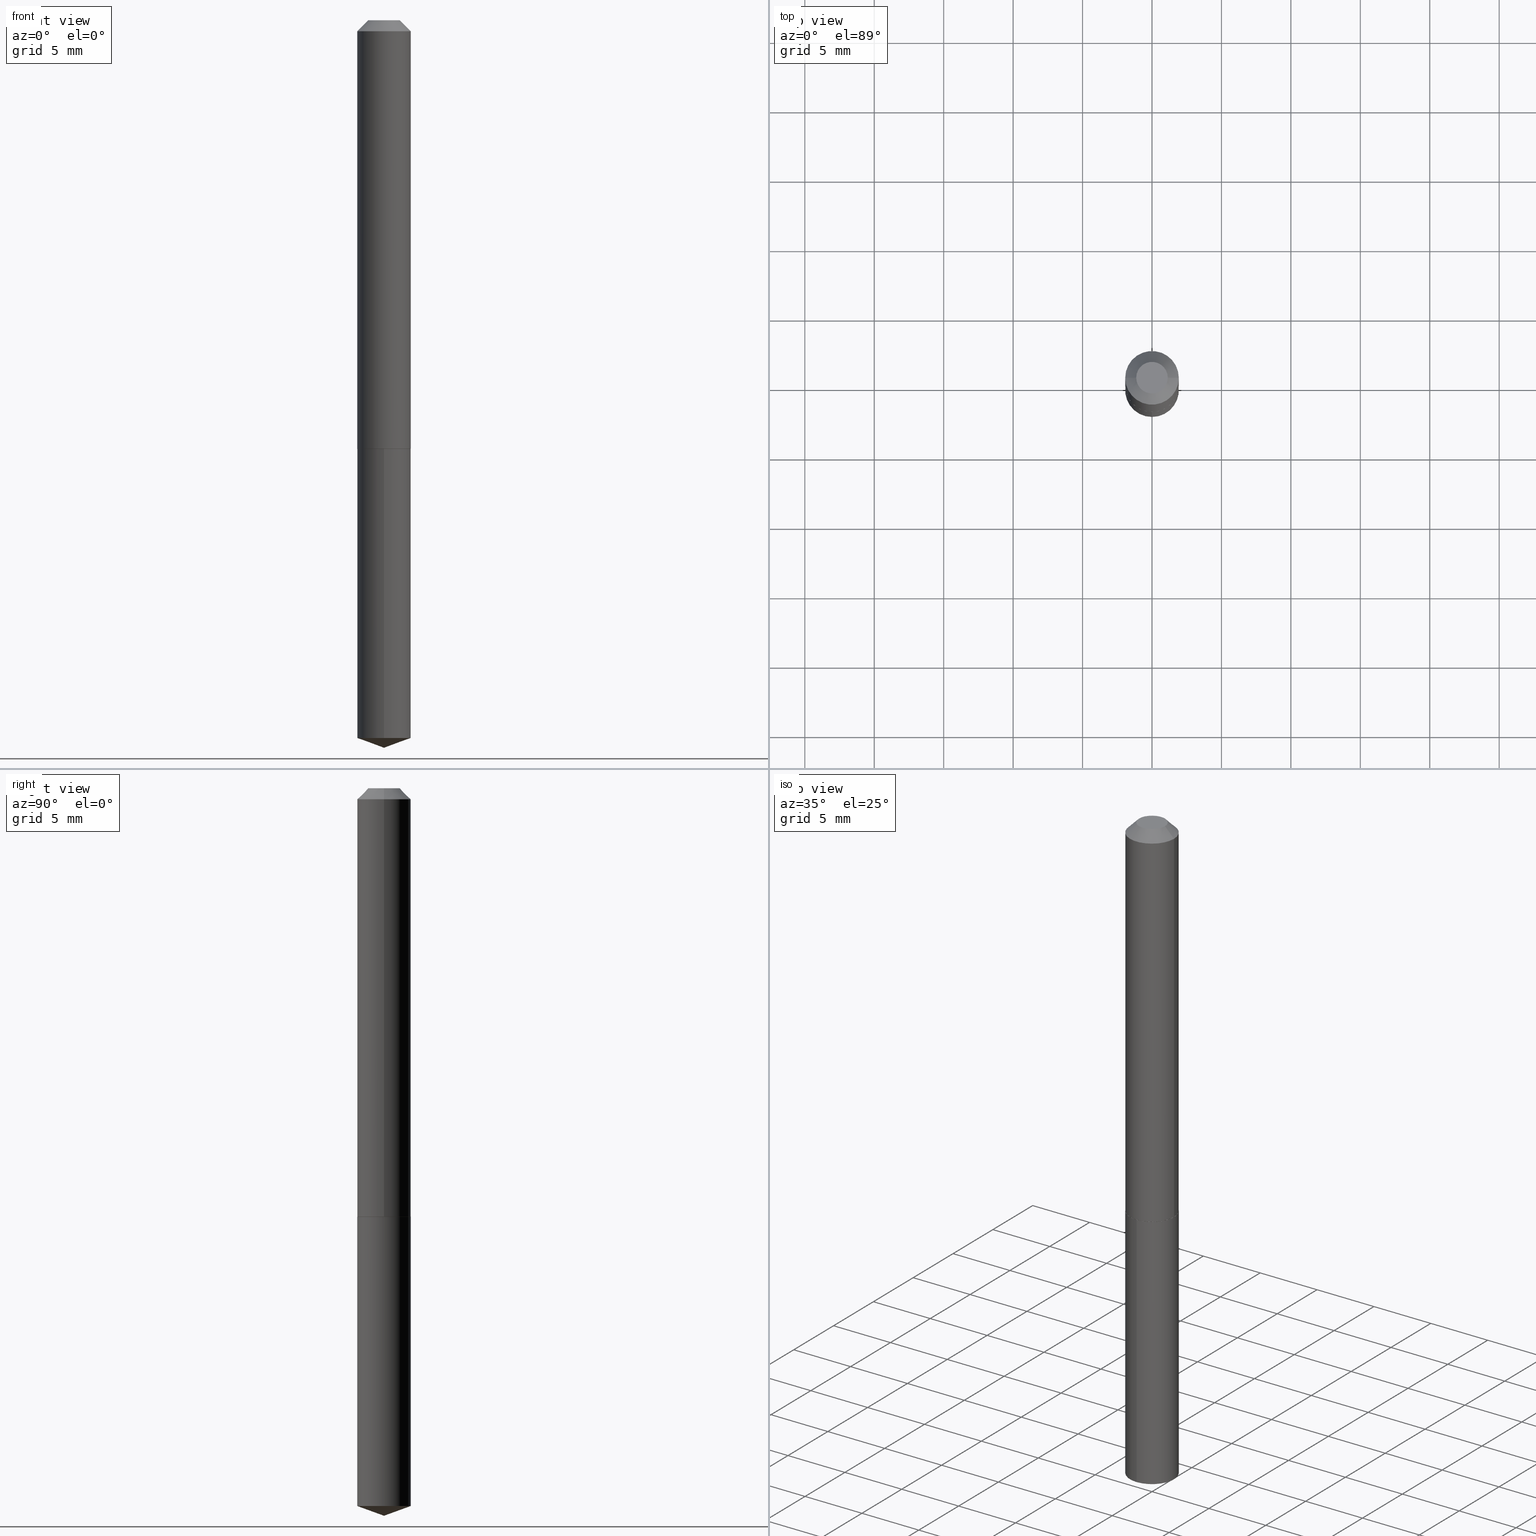
[diagram: canonical four-view strip — front | top / right | iso, engineering-drawing reading convention]
A machine part, canonical four-view strip (front | top / right | iso — engineering-drawing reading convention). The complete STEP part file that produces these views, byte-faithful:
ISO-10303-21;
HEADER;
FILE_DESCRIPTION (( 'STEP AP203' ),
    '1' );
FILE_NAME ('56233.STEP',
    '2024-04-22T21:14:13',
    ( '' ),
    ( '' ),
    'SwSTEP 2.0',
    'SolidWorks 2023',
    '' );
FILE_SCHEMA (( 'CONFIG_CONTROL_DESIGN' ));
ENDSEC;

DATA;
#1 = ORIENTED_EDGE ( 'NONE', *, *, #373, .T. ) ;
#2 = FACE_OUTER_BOUND ( 'NONE', #35, .T. ) ;
#3 = AXIS2_PLACEMENT_3D ( 'NONE', #153, #265, #93 ) ;
#4 = CARTESIAN_POINT ( 'NONE',  ( 2.970021865111848657E-29, -4.240404086025000985E-15, -1.214500000000000135 ) ) ;
#5 = EDGE_LOOP ( 'NONE', ( #272, #96, #363 ) ) ;
#6 = DIRECTION ( 'NONE',  ( -6.982962677686265922E-15, -1.000000000000000000, 3.594536833768767206E-15 ) ) ;
#7 = CARTESIAN_POINT ( 'NONE',  ( 1.435698766471706349E-29, -6.437642091525159850E-15, -1.214500000000000135 ) ) ;
#8 = ADVANCED_FACE ( 'NONE', ( #48 ), #81, .T. ) ;
#9 = ORIENTED_EDGE ( 'NONE', *, *, #143, .T. ) ;
#10 = APPROVAL_DATE_TIME ( #274, #304 ) ;
#11 = DIRECTION ( 'NONE',  ( 2.445468806185136597E-29, -3.491481338843145583E-15, -1.000000000000000000 ) ) ;
#12 = LINE ( 'NONE', #130, #178 ) ;
#13 = ORIENTED_EDGE ( 'NONE', *, *, #263, .T. ) ;
#14 = DIRECTION ( 'NONE',  ( 0.7071067811865451302, -7.319954787623248157E-15, -0.7071067811865499042 ) ) ;
#15 = VECTOR ( 'NONE', #181, 39.37007874015748143 ) ;
#16 = DIRECTION ( 'NONE',  ( -2.445468806185136597E-29, 3.491481338843145583E-15, 1.000000000000000000 ) ) ;
#17 = ORIENTED_EDGE ( 'NONE', *, *, #240, .F. ) ;
#18 = ADVANCED_FACE ( 'NONE', ( #196 ), #170, .T. ) ;
#19 = DIRECTION ( 'NONE',  ( -2.445502478072881383E-29, 3.491433118783410278E-15, 1.000000000000000000 ) ) ;
#20 = FACE_OUTER_BOUND ( 'NONE', #235, .T. ) ;
#21 = PERSON_AND_ORGANIZATION ( #77, #58 ) ;
#22 = VECTOR ( 'NONE', #298, 39.37007874015748143 ) ;
#23 = CIRCLE ( 'NONE', #84, 0.07599999999999999811 ) ;
#24 = ORIENTED_EDGE ( 'NONE', *, *, #67, .F. ) ;
#25 = PERSON_AND_ORGANIZATION ( #77, #58 ) ;
#26 = ORIENTED_EDGE ( 'NONE', *, *, #263, .F. ) ;
#27 = ORIENTED_EDGE ( 'NONE', *, *, #209, .F. ) ;
#28 = ORIENTED_EDGE ( 'NONE', *, *, #324, .T. ) ;
#29 = CONICAL_SURFACE ( 'NONE', #269, 0.07599999999999999811, 0.7853981633974449483 ) ;
#30 = CC_DESIGN_SECURITY_CLASSIFICATION ( #108, ( #271 ) ) ;
#31 = EDGE_CURVE ( 'NONE', #60, #85, #351, .T. ) ;
#32 = DIRECTION ( 'NONE',  ( -2.445502478072881663E-29, 3.491433118783410278E-15, 1.000000000000000000 ) ) ;
#33 = DIRECTION ( 'NONE',  ( -2.445468806185136597E-29, 3.491481338843145583E-15, 1.000000000000000000 ) ) ;
#34 = AXIS2_PLACEMENT_3D ( 'NONE', #378, #169, #139 ) ;
#35 = EDGE_LOOP ( 'NONE', ( #17, #175, #110, #315 ) ) ;
#36 = FACE_OUTER_BOUND ( 'NONE', #257, .T. ) ;
#37 = CARTESIAN_POINT ( 'NONE',  ( 0.04474999999999999811, -4.687569625348806714E-16, -1.224646799120048031E-19 ) ) ;
#38 = PERSON_AND_ORGANIZATION ( #77, #58 ) ;
#39 = LINE ( 'NONE', #146, #15 ) ;
#40 = CARTESIAN_POINT ( 'NONE',  ( 4.976161118169602399E-29, -7.104560263260536037E-15, -2.034838262195768799 ) ) ;
#41 = CARTESIAN_POINT ( 'NONE',  ( 2.994835545909338206E-48, -4.275831445896990567E-34, -1.224646799147357958E-19 ) ) ;
#42 = ADVANCED_FACE ( 'NONE', ( #2 ), #325, .T. ) ;
#43 = CARTESIAN_POINT ( 'NONE',  ( 5.043767072009985214E-29, -7.201197934015881746E-15, -2.062500000000000000 ) ) ;
#44 = CALENDAR_DATE ( 2024, 22, 4 ) ;
#45 = DIRECTION ( 'NONE',  ( -2.445468806185136877E-29, 3.491481338843145188E-15, 1.000000000000000000 ) ) ;
#46 = ORIENTED_EDGE ( 'NONE', *, *, #289, .F. ) ;
#47 = MANIFOLD_SOLID_BREP ( 'Body-Move/Copy2[2]', #64 ) ;
#48 = FACE_OUTER_BOUND ( 'NONE', #278, .T. ) ;
#49 = CARTESIAN_POINT ( 'NONE',  ( -0.07600000000000006750, 5.400124791776766209E-16, -3.738390668593732200E-30 ) ) ;
#50 = CC_DESIGN_DATE_AND_TIME_ASSIGNMENT ( #102, #223, ( #198 ) ) ;
#51 = AXIS2_PLACEMENT_3D ( 'NONE', #344, #308, #375 ) ;
#52 = CARTESIAN_POINT ( 'NONE',  ( 0.000000000000000000, 0.000000000000000000, 0.000000000000000000 ) ) ;
#53 = COORDINATED_UNIVERSAL_TIME_OFFSET ( 5, 0, .BEHIND. ) ;
#54 = DIRECTION ( 'NONE',  ( 1.000000000000000000, -6.982962677686265922E-15, 0.000000000000000000 ) ) ;
#55 = CALENDAR_DATE ( 2024, 22, 4 ) ;
#56 = DIRECTION ( 'NONE',  ( -2.445502478072881383E-29, 3.491433118783410278E-15, 1.000000000000000000 ) ) ;
#57 = CIRCLE ( 'NONE', #69, 0.07550000000000026135 ) ;
#58 = ORGANIZATION ( 'UNSPECIFIED', 'UNSPECIFIED', '' ) ;
#59 = VERTEX_POINT ( 'NONE', #37 ) ;
#60 = VERTEX_POINT ( 'NONE', #157 ) ;
#61 = PLANE ( 'NONE',  #342 ) ;
#62 = EDGE_CURVE ( 'NONE', #382, #220, #268, .T. ) ;
#63 = DIRECTION ( 'NONE',  ( 0.000000000000000000, 0.000000000000000000, 1.000000000000000000 ) ) ;
#64 = CLOSED_SHELL ( 'NONE', ( #18, #168, #100, #330, #368, #234, #186, #314 ) ) ;
#65 = VECTOR ( 'NONE', #14, 39.37007874015748143 ) ;
#66 = UNCERTAINTY_MEASURE_WITH_UNIT (LENGTH_MEASURE( 1.000000000000000082E-05 ), #89, 'distance_accuracy_value', 'NONE');
#67 = EDGE_CURVE ( 'NONE', #382, #134, #311, .T. ) ;
#68 = CARTESIAN_POINT ( 'NONE',  ( 5.043848861025317432E-29, -7.201080807490783057E-15, -2.062500000000000000 ) ) ;
#69 = AXIS2_PLACEMENT_3D ( 'NONE', #4, #95, #275 ) ;
#70 = AXIS2_PLACEMENT_3D ( 'NONE', #180, #291, #362 ) ;
#71 = DIRECTION ( 'NONE',  ( 1.000000000000000000, -6.982962677686266711E-15, 4.876173742049987610E-29 ) ) ;
#72 = ORIENTED_EDGE ( 'NONE', *, *, #149, .T. ) ;
#73 = ORIENTED_EDGE ( 'NONE', *, *, #316, .F. ) ;
#74 = EDGE_CURVE ( 'NONE', #326, #60, #183, .T. ) ;
#75 = DIRECTION ( 'NONE',  ( -2.445502478072881663E-29, 3.491433118783410278E-15, 1.000000000000000000 ) ) ;
#76 = PERSON_AND_ORGANIZATION ( #77, #58 ) ;
#77 = PERSON ( 'UNSPECIFIED', 'UNSPECIFIED', 'UNSPECIFIED', ('UNSPECIFIED'), ('UNSPECIFIED'), ('UNSPECIFIED') ) ;
#78 = APPROVAL_STATUS ( 'not_yet_approved' ) ;
#79 = DIRECTION ( 'NONE',  ( 1.000000000000000000, -6.982962677686269077E-15, 0.000000000000000000 ) ) ;
#80 = CARTESIAN_POINT ( 'NONE',  ( 7.642090019328602662E-31, -1.091087918388490267E-16, -0.03125000000000020817 ) ) ;
#81 = CYLINDRICAL_SURFACE ( 'NONE', #285, 0.07599999999999999811 ) ;
#82 = DIRECTION ( 'NONE',  ( -2.445468806185136597E-29, 3.491481338843145583E-15, 1.000000000000000000 ) ) ;
#83 = EDGE_CURVE ( 'NONE', #200, #326, #150, .T. ) ;
#84 = AXIS2_PLACEMENT_3D ( 'NONE', #172, #384, #352 ) ;
#85 = VERTEX_POINT ( 'NONE', #125 ) ;
#86 = DIRECTION ( 'NONE',  ( 1.000000000000000000, 0.000000000000000000, 0.000000000000000000 ) ) ;
#87 = DIRECTION ( 'NONE',  ( -0.7071067811863422925, 7.493145998869612631E-15, 0.7071067811867527420 ) ) ;
#88 = DIRECTION ( 'NONE',  ( 1.000000000000000000, -6.982962677686265922E-15, 4.876176775795935793E-29 ) ) ;
#89 =( CONVERSION_BASED_UNIT ( 'INCH', #260 ) LENGTH_UNIT ( ) NAMED_UNIT ( #174 ) );
#90 = APPROVAL_PERSON_ORGANIZATION ( #313, #360, #195 ) ;
#91 = DIRECTION ( 'NONE',  ( 1.000000000000000000, -6.982962677686269077E-15, 0.000000000000000000 ) ) ;
#92 = APPROVAL_PERSON_ORGANIZATION ( #138, #304, #140 ) ;
#93 = DIRECTION ( 'NONE',  ( 1.000000000000000000, -6.982962677686269077E-15, 0.000000000000000000 ) ) ;
#94 = ORIENTED_EDGE ( 'NONE', *, *, #295, .T. ) ;
#95 = DIRECTION ( 'NONE',  ( -2.445468806185136597E-29, 3.491481338843145583E-15, 1.000000000000000000 ) ) ;
#96 = ORIENTED_EDGE ( 'NONE', *, *, #214, .T. ) ;
#97 = EDGE_LOOP ( 'NONE', ( #173, #288, #267, #338 ) ) ;
#98 = CIRCLE ( 'NONE', #334, 0.07600000000000013689 ) ;
#99 = CC_DESIGN_APPROVAL ( #116, ( #198 ) ) ;
#100 = ADVANCED_FACE ( 'NONE', ( #225 ), #321, .T. ) ;
#101 = LINE ( 'NONE', #300, #383 ) ;
#102 = DATE_AND_TIME ( #151, #148 ) ;
#103 = CARTESIAN_POINT ( 'NONE',  ( 0.000000000000000000, 0.000000000000000000, 0.000000000000000000 ) ) ;
#104 = CARTESIAN_POINT ( 'NONE',  ( 0.07599999999999999811, -6.398139553430053154E-16, -0.03125000000000020817 ) ) ;
#105 = COORDINATED_UNIVERSAL_TIME_OFFSET ( 5, 0, .BEHIND. ) ;
#106 = LINE ( 'NONE', #49, #299 ) ;
#107 = APPROVAL_DATE_TIME ( #135, #360 ) ;
#108 = SECURITY_CLASSIFICATION ( '', '', #163 ) ;
#109 = APPROVAL_DATE_TIME ( #160, #116 ) ;
#110 = ORIENTED_EDGE ( 'NONE', *, *, #74, .T. ) ;
#111 = APPLICATION_PROTOCOL_DEFINITION ( 'international standard', 'config_control_design', 1994, #251 ) ;
#112 = EDGE_CURVE ( 'NONE', #232, #220, #98, .T. ) ;
#113 = ORIENTED_EDGE ( 'NONE', *, *, #324, .F. ) ;
#114 = DIRECTION ( 'NONE',  ( 1.000000000000000000, -6.982962677686269866E-15, 0.000000000000000000 ) ) ;
#115 = DIRECTION ( 'NONE',  ( -1.000000000000000000, 6.982962677686265922E-15, 0.000000000000000000 ) ) ;
#116 = APPROVAL ( #155, 'UNSPECIFIED' ) ;
#117 = APPLICATION_PROTOCOL_DEFINITION ( 'international standard', 'config_control_design', 1994, #233 ) ;
#118 = DIRECTION ( 'NONE',  ( 2.438088387897960049E-29, -3.491481338843145188E-15, -1.000000000000000000 ) ) ;
#119 = CLOSED_SHELL ( 'NONE', ( #8, #270, #182, #42, #350 ) ) ;
#120 = CARTESIAN_POINT ( 'NONE',  ( -0.07600000000000013689, -3.698645866177901283E-15, -1.213999999999999968 ) ) ;
#121 = AXIS2_PLACEMENT_3D ( 'NONE', #323, #187, #390 ) ;
#122 = AXIS2_PLACEMENT_3D ( 'NONE', #7, #188, #88 ) ;
#123 = ORIENTED_EDGE ( 'NONE', *, *, #83, .T. ) ;
#124 = ORIENTED_EDGE ( 'NONE', *, *, #128, .F. ) ;
#125 = CARTESIAN_POINT ( 'NONE',  ( 5.400124791777260233E-16, 0.07599999999999575151, -1.214500000000000357 ) ) ;
#126 = ORIENTED_EDGE ( 'NONE', *, *, #289, .T. ) ;
#127 = CARTESIAN_POINT ( 'NONE',  ( 5.043849578218437891E-29, -7.201080807490783057E-15, -2.062500000000000000 ) ) ;
#128 = EDGE_CURVE ( 'NONE', #134, #382, #57, .T. ) ;
#129 = DIRECTION ( 'NONE',  ( -1.000000000000000000, 6.982962677686265922E-15, 0.000000000000000000 ) ) ;
#130 = CARTESIAN_POINT ( 'NONE',  ( -0.07599999999999999811, 4.215963716653072620E-16, -0.03125000000000020817 ) ) ;
#131 = ORIENTED_EDGE ( 'NONE', *, *, #345, .F. ) ;
#132 = FACE_OUTER_BOUND ( 'NONE', #5, .T. ) ;
#133 = CARTESIAN_POINT ( 'NONE',  ( 7.642090019328602662E-31, -1.091087918388490267E-16, -0.03125000000000020817 ) ) ;
#134 = VERTEX_POINT ( 'NONE', #217 ) ;
#135 = DATE_AND_TIME ( #55, #142 ) ;
#136 = CARTESIAN_POINT ( 'NONE',  ( 7.642090019328602662E-31, -1.091087918388490267E-16, -0.03125000000000020817 ) ) ;
#137 = LINE ( 'NONE', #367, #65 ) ;
#138 = PERSON_AND_ORGANIZATION ( #77, #58 ) ;
#139 = DIRECTION ( 'NONE',  ( -6.982962677686268288E-15, -1.000000000000000000, 3.475157955500691026E-15 ) ) ;
#140 = APPROVAL_ROLE ( '' ) ;
#141 = AXIS2_PLACEMENT_3D ( 'NONE', #253, #224, #340 ) ;
#142 = LOCAL_TIME ( 17, 14, 13.00000000000000000, #53 ) ;
#143 = EDGE_CURVE ( 'NONE', #247, #210, #158, .T. ) ;
#144 = VERTEX_POINT ( 'NONE', #162 ) ;
#145 = PRODUCT_RELATED_PRODUCT_CATEGORY ( 'detail', '', ( #332 ) ) ;
#146 = CARTESIAN_POINT ( 'NONE',  ( 0.07600000000000013689, -4.769363508859736288E-15, -1.213999999999999968 ) ) ;
#147 = CIRCLE ( 'NONE', #361, 0.07600000000000013689 ) ;
#148 = LOCAL_TIME ( 17, 14, 13.00000000000000000, #353 ) ;
#149 = EDGE_CURVE ( 'NONE', #232, #247, #101, .T. ) ;
#150 = LINE ( 'NONE', #43, #357 ) ;
#151 = CALENDAR_DATE ( 2024, 22, 4 ) ;
#152 = AXIS2_PLACEMENT_3D ( 'NONE', #136, #11, #129 ) ;
#153 = CARTESIAN_POINT ( 'NONE',  ( 2.968799130708755855E-29, -4.238658345355578692E-15, -1.213999999999999968 ) ) ;
#154 = CARTESIAN_POINT ( 'NONE',  ( -0.07599999999999999811, -1.633871089419536487E-15, -0.03125000000000020817 ) ) ;
#155 = APPROVAL_STATUS ( 'not_yet_approved' ) ;
#156 = EDGE_LOOP ( 'NONE', ( #176, #28 ) ) ;
#157 = CARTESIAN_POINT ( 'NONE',  ( -5.307051635041264353E-16, -0.07600000000000424472, -1.214499999999999691 ) ) ;
#158 = CIRCLE ( 'NONE', #341, 0.07599999999999999811 ) ;
#159 = CC_DESIGN_APPROVAL ( #360, ( #271 ) ) ;
#160 = DATE_AND_TIME ( #191, #167 ) ;
#161 = ORIENTED_EDGE ( 'NONE', *, *, #240, .T. ) ;
#162 = CARTESIAN_POINT ( 'NONE',  ( -0.04474999999999999811, 3.670419757458837964E-16, -1.224646799171116471E-19 ) ) ;
#163 = SECURITY_CLASSIFICATION_LEVEL ( 'unclassified' ) ;
#164 = CC_DESIGN_PERSON_AND_ORGANIZATION_ASSIGNMENT ( #21, #371, ( #108 ) ) ;
#165 = DIRECTION ( 'NONE',  ( -6.982962677686265922E-15, -1.000000000000000000, 3.594536833768767206E-15 ) ) ;
#166 = AXIS2_PLACEMENT_3D ( 'NONE', #199, #16, #310 ) ;
#167 = LOCAL_TIME ( 17, 14, 13.00000000000000000, #239 ) ;
#168 = ADVANCED_FACE ( 'NONE', ( #250 ), #221, .T. ) ;
#169 = DIRECTION ( 'NONE',  ( -2.445502478072881383E-29, 3.491433118783410278E-15, 1.000000000000000000 ) ) ;
#170 = CONICAL_SURFACE ( 'NONE', #152, 0.07599999999999999811, 0.7853981633974449483 ) ;
#171 = AXIS2_PLACEMENT_3D ( 'NONE', #80, #348, #54 ) ;
#172 = CARTESIAN_POINT ( 'NONE',  ( 2.970021865111848096E-29, -4.240404086025000196E-15, -1.214499999999999913 ) ) ;
#173 = ORIENTED_EDGE ( 'NONE', *, *, #128, .T. ) ;
#174 = DIMENSIONAL_EXPONENTS ( 1.000000000000000000, 0.000000000000000000, 0.000000000000000000, 0.000000000000000000, 0.000000000000000000, 0.000000000000000000, 0.000000000000000000 ) ;
#175 = ORIENTED_EDGE ( 'NONE', *, *, #215, .T. ) ;
#176 = ORIENTED_EDGE ( 'NONE', *, *, #316, .T. ) ;
#177 = VECTOR ( 'NONE', #75, 39.37007874015748143 ) ;
#178 = VECTOR ( 'NONE', #297, 39.37007874015748143 ) ;
#179 = LOCAL_TIME ( 17, 14, 13.00000000000000000, #105 ) ;
#180 = CARTESIAN_POINT ( 'NONE',  ( 2.970021865111848096E-29, -4.240404086025000196E-15, -1.214499999999999913 ) ) ;
#181 = DIRECTION ( 'NONE',  ( 0.7071067811863422925, -2.468850131080107415E-15, 0.7071067811867527420 ) ) ;
#182 = ADVANCED_FACE ( 'NONE', ( #20 ), #377, .T. ) ;
#183 = LINE ( 'NONE', #293, #246 ) ;
#184 = VECTOR ( 'NONE', #87, 39.37007874015748143 ) ;
#185 = AXIS2_PLACEMENT_3D ( 'NONE', #216, #364, #329 ) ;
#186 = ADVANCED_FACE ( 'NONE', ( #229 ), #29, .T. ) ;
#187 = DIRECTION ( 'NONE',  ( -2.445502478072881383E-29, 3.491433118783410278E-15, 1.000000000000000000 ) ) ;
#188 = DIRECTION ( 'NONE',  ( -2.438088387897960049E-29, 3.491481338843145188E-15, 1.000000000000000000 ) ) ;
#189 = APPROVAL_ROLE ( '' ) ;
#190 = FACE_OUTER_BOUND ( 'NONE', #241, .T. ) ;
#191 = CALENDAR_DATE ( 2024, 22, 4 ) ;
#192 = DIRECTION ( 'NONE',  ( 1.000000000000000000, -6.982962677686265922E-15, 0.000000000000000000 ) ) ;
#193 = AXIS2_PLACEMENT_3D ( 'NONE', #103, #82, #207 ) ;
#194 = AXIS2_PLACEMENT_3D ( 'NONE', #52, #242, #282 ) ;
#195 = APPROVAL_ROLE ( '' ) ;
#196 = FACE_OUTER_BOUND ( 'NONE', #355, .T. ) ;
#197 = CARTESIAN_POINT ( 'NONE',  ( -5.307051635041065165E-16, -0.07600000000000708966, -2.034838262195768799 ) ) ;
#198 = PRODUCT_DEFINITION ( 'UNKNOWN', '', #271, #292 ) ;
#199 = CARTESIAN_POINT ( 'NONE',  ( 2.968799130708755855E-29, -4.238658345355578692E-15, -1.213999999999999968 ) ) ;
#200 = VERTEX_POINT ( 'NONE', #68 ) ;
#201 = ORIENTED_EDGE ( 'NONE', *, *, #345, .T. ) ;
#202 = DIRECTION ( 'NONE',  ( -2.445468806185136597E-29, 3.491481338843145583E-15, 1.000000000000000000 ) ) ;
#203 = CC_DESIGN_PERSON_AND_ORGANIZATION_ASSIGNMENT ( #25, #349, ( #198 ) ) ;
#204 = AXIS2_PLACEMENT_3D ( 'NONE', #40, #337, #276 ) ;
#205 = PERSON_AND_ORGANIZATION ( #77, #58 ) ;
#206 = ORIENTED_EDGE ( 'NONE', *, *, #74, .F. ) ;
#207 = DIRECTION ( 'NONE',  ( 1.000000000000000000, -6.982962677686267499E-15, 4.876176775795935793E-29 ) ) ;
#208 = ORIENTED_EDGE ( 'NONE', *, *, #112, .T. ) ;
#209 = EDGE_CURVE ( 'NONE', #220, #232, #147, .T. ) ;
#210 = VERTEX_POINT ( 'NONE', #154 ) ;
#211 = ORIENTED_EDGE ( 'NONE', *, *, #284, .T. ) ;
#212 = VERTEX_POINT ( 'NONE', #266 ) ;
#213 = FACE_OUTER_BOUND ( 'NONE', #333, .T. ) ;
#214 = EDGE_CURVE ( 'NONE', #200, #212, #249, .T. ) ;
#215 = EDGE_CURVE ( 'NONE', #212, #326, #236, .T. ) ;
#216 = CARTESIAN_POINT ( 'NONE',  ( 2.994835545909338206E-48, -4.275831445896990567E-34, -1.224646799147357958E-19 ) ) ;
#217 = CARTESIAN_POINT ( 'NONE',  ( 0.07550000000000026135, -4.767617768190315573E-15, -1.214500000000000135 ) ) ;
#218 = ORIENTED_EDGE ( 'NONE', *, *, #258, .T. ) ;
#219 = CARTESIAN_POINT ( 'NONE',  ( 1.497417772954669103E-48, -2.137915722948495283E-34, -6.123233995736789792E-20 ) ) ;
#220 = VERTEX_POINT ( 'NONE', #279 ) ;
#221 = CYLINDRICAL_SURFACE ( 'NONE', #193, 0.07600000000000006750 ) ;
#222 = LINE ( 'NONE', #370, #177 ) ;
#223 = DATE_TIME_ROLE ( 'creation_date' ) ;
#224 = DIRECTION ( 'NONE',  ( -2.445502478072881383E-29, 3.491433118783410278E-15, 1.000000000000000000 ) ) ;
#225 = FACE_OUTER_BOUND ( 'NONE', #97, .T. ) ;
#226 = DIRECTION ( 'NONE',  ( -2.445468806185136877E-29, 3.491481338843145188E-15, 1.000000000000000000 ) ) ;
#227 = APPROVAL_PERSON_ORGANIZATION ( #38, #116, #189 ) ;
#228 = EDGE_LOOP ( 'NONE', ( #306, #336, #72, #46 ) ) ;
#229 = FACE_OUTER_BOUND ( 'NONE', #366, .T. ) ;
#230 = ORIENTED_EDGE ( 'NONE', *, *, #31, .F. ) ;
#231 = CC_DESIGN_PERSON_AND_ORGANIZATION_ASSIGNMENT ( #76, #309, ( #271 ) ) ;
#232 = VERTEX_POINT ( 'NONE', #273 ) ;
#233 = APPLICATION_CONTEXT ( 'configuration controlled 3d designs of mechanical parts and assemblies' ) ;
#234 = ADVANCED_FACE ( 'NONE', ( #245 ), #369, .T. ) ;
#235 = EDGE_LOOP ( 'NONE', ( #259, #123, #372 ) ) ;
#236 = CIRCLE ( 'NONE', #204, 0.07599999999999999811 ) ;
#237 = CC_DESIGN_APPROVAL ( #304, ( #108 ) ) ;
#238 = DIRECTION ( 'NONE',  ( -2.445468806185136597E-29, 3.491481338843145583E-15, 1.000000000000000000 ) ) ;
#239 = COORDINATED_UNIVERSAL_TIME_OFFSET ( 5, 0, .BEHIND. ) ;
#240 = EDGE_CURVE ( 'NONE', #212, #85, #222, .T. ) ;
#241 = EDGE_LOOP ( 'NONE', ( #124, #24 ) ) ;
#242 = DIRECTION ( 'NONE',  ( -2.445468806185136597E-29, 3.491481338843145583E-15, 1.000000000000000000 ) ) ;
#243 = ORIENTED_EDGE ( 'NONE', *, *, #143, .F. ) ;
#244 = ORIENTED_EDGE ( 'NONE', *, *, #31, .T. ) ;
#245 = FACE_OUTER_BOUND ( 'NONE', #228, .T. ) ;
#246 = VECTOR ( 'NONE', #32, 39.37007874015748143 ) ;
#247 = VERTEX_POINT ( 'NONE', #104 ) ;
#248 = LOCAL_TIME ( 17, 14, 13.00000000000000000, #302 ) ;
#249 = LINE ( 'NONE', #127, #22 ) ;
#250 = FACE_OUTER_BOUND ( 'NONE', #346, .T. ) ;
#251 = APPLICATION_CONTEXT ( 'configuration controlled 3d designs of mechanical parts and assemblies' ) ;
#252 = PERSON_AND_ORGANIZATION_ROLE ( 'design_supplier' ) ;
#253 = CARTESIAN_POINT ( 'NONE',  ( 2.970021865111848096E-29, -4.240404086025000196E-15, -1.214499999999999913 ) ) ;
#254 = CARTESIAN_POINT ( 'NONE',  ( 7.642090019328602662E-31, -1.091087918388490267E-16, -0.03125000000000020817 ) ) ;
#255 = AXIS2_PLACEMENT_3D ( 'NONE', #319, #33, #114 ) ;
#256 = CIRCLE ( 'NONE', #171, 0.07599999999999999811 ) ;
#257 = EDGE_LOOP ( 'NONE', ( #389, #301, #1, #27 ) ) ;
#258 = EDGE_CURVE ( 'NONE', #326, #212, #286, .T. ) ;
#259 = ORIENTED_EDGE ( 'NONE', *, *, #214, .F. ) ;
#260 = LENGTH_MEASURE_WITH_UNIT ( LENGTH_MEASURE( 0.02539999999999999897 ), #262 );
#261 = DIRECTION ( 'NONE',  ( -2.445468806185136597E-29, 3.491481338843145583E-15, 1.000000000000000000 ) ) ;
#262 =( LENGTH_UNIT ( ) NAMED_UNIT ( * ) SI_UNIT ( $, .METRE. ) );
#263 = EDGE_CURVE ( 'NONE', #59, #247, #137, .T. ) ;
#264 = CIRCLE ( 'NONE', #379, 0.04474999999999999811 ) ;
#265 = DIRECTION ( 'NONE',  ( -2.445468806185136597E-29, 3.491481338843145583E-15, 1.000000000000000000 ) ) ;
#266 = CARTESIAN_POINT ( 'NONE',  ( 5.400124791777257275E-16, 0.07599999999999289269, -2.034838262195769243 ) ) ;
#267 = ORIENTED_EDGE ( 'NONE', *, *, #112, .F. ) ;
#268 = LINE ( 'NONE', #120, #184 ) ;
#269 = AXIS2_PLACEMENT_3D ( 'NONE', #254, #347, #115 ) ;
#270 = ADVANCED_FACE ( 'NONE', ( #132 ), #385, .T. ) ;
#271 = PRODUCT_DEFINITION_FORMATION_WITH_SPECIFIED_SOURCE ( 'ANY', '', #332, .NOT_KNOWN. ) ;
#272 = ORIENTED_EDGE ( 'NONE', *, *, #83, .F. ) ;
#273 = CARTESIAN_POINT ( 'NONE',  ( 0.07600000000000013689, -4.769363508859736288E-15, -1.213999999999999968 ) ) ;
#274 = DATE_AND_TIME ( #44, #248 ) ;
#275 = DIRECTION ( 'NONE',  ( 1.000000000000000000, -6.982962677686269866E-15, 0.000000000000000000 ) ) ;
#276 = DIRECTION ( 'NONE',  ( -6.982962677686265922E-15, -1.000000000000000000, 3.594536833768767206E-15 ) ) ;
#277 = CC_DESIGN_DATE_AND_TIME_ASSIGNMENT ( #312, #283, ( #108 ) ) ;
#278 = EDGE_LOOP ( 'NONE', ( #218, #161, #230, #206 ) ) ;
#279 = CARTESIAN_POINT ( 'NONE',  ( -0.07600000000000013689, -3.698645866177901283E-15, -1.213999999999999968 ) ) ;
#280 = CARTESIAN_POINT ( 'NONE',  ( 2.970021865111848096E-29, -4.240404086025000196E-15, -1.214499999999999913 ) ) ;
#281 = PRODUCT_DEFINITION_SHAPE ( 'NONE', 'NONE',  #198 ) ;
#282 = DIRECTION ( 'NONE',  ( 1.000000000000000000, -6.982962677686267499E-15, 4.876176775795935793E-29 ) ) ;
#283 = DATE_TIME_ROLE ( 'classification_date' ) ;
#284 = EDGE_CURVE ( 'NONE', #220, #210, #106, .T. ) ;
#285 = AXIS2_PLACEMENT_3D ( 'NONE', #280, #56, #6 ) ;
#286 = CIRCLE ( 'NONE', #359, 0.07599999999999999811 ) ;
#287 = MANIFOLD_SOLID_BREP ( 'Body-Move/Copy2[1]', #119 ) ;
#288 = ORIENTED_EDGE ( 'NONE', *, *, #62, .T. ) ;
#289 = EDGE_CURVE ( 'NONE', #210, #247, #256, .T. ) ;
#290 = CIRCLE ( 'NONE', #185, 0.04474999999999999811 ) ;
#291 = DIRECTION ( 'NONE',  ( 2.445502478072881103E-29, -3.491433118783410278E-15, -1.000000000000000000 ) ) ;
#292 = DESIGN_CONTEXT ( 'detailed design', #233, 'design' ) ;
#293 = CARTESIAN_POINT ( 'NONE',  ( -5.307051635041264353E-16, -0.07600000000000424472, -1.214499999999999691 ) ) ;
#294 =( NAMED_UNIT ( * ) PLANE_ANGLE_UNIT ( ) SI_UNIT ( $, .RADIAN. ) );
#295 = EDGE_CURVE ( 'NONE', #85, #60, #23, .T. ) ;
#296 = PERSON_AND_ORGANIZATION ( #77, #58 ) ;
#297 = DIRECTION ( 'NONE',  ( -0.7071067811865451302, 2.468850131082231817E-15, -0.7071067811865499042 ) ) ;
#298 = DIRECTION ( 'NONE',  ( 6.676917655467976807E-15, 0.9396926207859108704, 0.3420201433256619961 ) ) ;
#299 = VECTOR ( 'NONE', #226, 39.37007874015748143 ) ;
#300 = CARTESIAN_POINT ( 'NONE',  ( 0.07600000000000006750, -5.307051635041568064E-16, 3.705894349604914454E-30 ) ) ;
#301 = ORIENTED_EDGE ( 'NONE', *, *, #67, .T. ) ;
#302 = COORDINATED_UNIVERSAL_TIME_OFFSET ( 5, 0, .BEHIND. ) ;
#303 = PLANE ( 'NONE',  #122 ) ;
#304 = APPROVAL ( #376, 'UNSPECIFIED' ) ;
#305 = DIRECTION ( 'NONE',  ( -2.445468806185136597E-29, 3.491481338843145583E-15, 1.000000000000000000 ) ) ;
#306 = ORIENTED_EDGE ( 'NONE', *, *, #284, .F. ) ;
#307 = CARTESIAN_POINT ( 'NONE',  ( 4.976161118169602399E-29, -7.104560263260536037E-15, -2.034838262195768799 ) ) ;
#308 = DIRECTION ( 'NONE',  ( -2.445502478072881383E-29, 3.491433118783410278E-15, 1.000000000000000000 ) ) ;
#309 = PERSON_AND_ORGANIZATION_ROLE ( 'creator' ) ;
#310 = DIRECTION ( 'NONE',  ( 1.000000000000000000, -6.982962677686269077E-15, 0.000000000000000000 ) ) ;
#311 = CIRCLE ( 'NONE', #255, 0.07550000000000026135 ) ;
#312 = DATE_AND_TIME ( #339, #179 ) ;
#313 = PERSON_AND_ORGANIZATION ( #77, #58 ) ;
#314 = ADVANCED_FACE ( 'NONE', ( #317 ), #61, .F. ) ;
#315 = ORIENTED_EDGE ( 'NONE', *, *, #295, .F. ) ;
#316 = EDGE_CURVE ( 'NONE', #144, #59, #264, .T. ) ;
#317 = FACE_OUTER_BOUND ( 'NONE', #156, .T. ) ;
#318 = MECHANICAL_CONTEXT ( 'NONE', #251, 'mechanical' ) ;
#319 = CARTESIAN_POINT ( 'NONE',  ( 2.970021865111848657E-29, -4.240404086025000985E-15, -1.214500000000000135 ) ) ;
#320 = PLANE ( 'NONE',  #70 ) ;
#321 = CONICAL_SURFACE ( 'NONE', #166, 0.07600000000000013689, 0.7853981633971580667 ) ;
#322 = CONICAL_SURFACE ( 'NONE', #3, 0.07600000000000013689, 0.7853981633971580667 ) ;
#323 = CARTESIAN_POINT ( 'NONE',  ( 2.970021865111848096E-29, -4.240404086025000196E-15, -1.214499999999999913 ) ) ;
#324 = EDGE_CURVE ( 'NONE', #59, #144, #290, .T. ) ;
#325 = CYLINDRICAL_SURFACE ( 'NONE', #121, 0.07599999999999999811 ) ;
#326 = VERTEX_POINT ( 'NONE', #197 ) ;
#327 = CARTESIAN_POINT ( 'NONE',  ( 2.968799130708755855E-29, -4.238658345355578692E-15, -1.213999999999999968 ) ) ;
#328 = SHAPE_DEFINITION_REPRESENTATION ( #281, #354 ) ;
#329 = DIRECTION ( 'NONE',  ( 1.000000000000000000, -6.982962677686266711E-15, 4.876173742049987610E-29 ) ) ;
#330 = ADVANCED_FACE ( 'NONE', ( #190 ), #303, .F. ) ;
#331 = CARTESIAN_POINT ( 'NONE',  ( 2.968799130708755855E-29, -4.238658345355578692E-15, -1.213999999999999968 ) ) ;
#332 = PRODUCT ( '56233', '56233', '', ( #318 ) ) ;
#333 = EDGE_LOOP ( 'NONE', ( #244, #94 ) ) ;
#334 = AXIS2_PLACEMENT_3D ( 'NONE', #331, #202, #79 ) ;
#335 = DIRECTION ( 'NONE',  ( -1.000000000000000000, 6.982962677686265922E-15, -4.876176775795935793E-29 ) ) ;
#336 = ORIENTED_EDGE ( 'NONE', *, *, #209, .T. ) ;
#337 = DIRECTION ( 'NONE',  ( -2.445502478072881383E-29, 3.491433118783410278E-15, 1.000000000000000000 ) ) ;
#338 = ORIENTED_EDGE ( 'NONE', *, *, #373, .F. ) ;
#339 = CALENDAR_DATE ( 2024, 22, 4 ) ;
#340 = DIRECTION ( 'NONE',  ( -6.982962677686265922E-15, -1.000000000000000000, 3.594536833768767206E-15 ) ) ;
#341 = AXIS2_PLACEMENT_3D ( 'NONE', #133, #305, #192 ) ;
#342 = AXIS2_PLACEMENT_3D ( 'NONE', #219, #118, #335 ) ;
#343 = AXIS2_PLACEMENT_3D ( 'NONE', #356, #63, #86 ) ;
#344 = CARTESIAN_POINT ( 'NONE',  ( -9.123581715446193244E-28, 1.302568574317431407E-13, 37.30757874015748143 ) ) ;
#345 = EDGE_CURVE ( 'NONE', #144, #210, #12, .T. ) ;
#346 = EDGE_LOOP ( 'NONE', ( #208, #211, #243, #365 ) ) ;
#347 = DIRECTION ( 'NONE',  ( 2.445468806185136597E-29, -3.491481338843145583E-15, -1.000000000000000000 ) ) ;
#348 = DIRECTION ( 'NONE',  ( -2.445468806185136597E-29, 3.491481338843145583E-15, 1.000000000000000000 ) ) ;
#349 = PERSON_AND_ORGANIZATION_ROLE ( 'creator' ) ;
#350 = ADVANCED_FACE ( 'NONE', ( #213 ), #320, .F. ) ;
#351 = CIRCLE ( 'NONE', #141, 0.07599999999999999811 ) ;
#352 = DIRECTION ( 'NONE',  ( -6.982962677686265922E-15, -1.000000000000000000, 3.594536833768767206E-15 ) ) ;
#353 = COORDINATED_UNIVERSAL_TIME_OFFSET ( 5, 0, .BEHIND. ) ;
#354 = ADVANCED_BREP_SHAPE_REPRESENTATION ( '56233', ( #287, #47, #343 ), #387 ) ;
#355 = EDGE_LOOP ( 'NONE', ( #113, #13, #9, #131 ) ) ;
#356 = CARTESIAN_POINT ( 'NONE',  ( 0.000000000000000000, 0.000000000000000000, 0.000000000000000000 ) ) ;
#357 = VECTOR ( 'NONE', #374, 39.37007874015748854 ) ;
#358 = CC_DESIGN_PERSON_AND_ORGANIZATION_ASSIGNMENT ( #296, #388, ( #332 ) ) ;
#359 = AXIS2_PLACEMENT_3D ( 'NONE', #307, #19, #165 ) ;
#360 = APPROVAL ( #78, 'UNSPECIFIED' ) ;
#361 = AXIS2_PLACEMENT_3D ( 'NONE', #327, #261, #91 ) ;
#362 = DIRECTION ( 'NONE',  ( 6.982962677686265922E-15, 1.000000000000000000, -3.491433118783410278E-15 ) ) ;
#363 = ORIENTED_EDGE ( 'NONE', *, *, #258, .F. ) ;
#364 = DIRECTION ( 'NONE',  ( -2.445468806185136597E-29, 3.491481338843145583E-15, 1.000000000000000000 ) ) ;
#365 = ORIENTED_EDGE ( 'NONE', *, *, #149, .F. ) ;
#366 = EDGE_LOOP ( 'NONE', ( #26, #73, #201, #126 ) ) ;
#367 = CARTESIAN_POINT ( 'NONE',  ( 0.07599999999999999811, -6.305066396694854024E-16, -0.03125000000000020817 ) ) ;
#368 = ADVANCED_FACE ( 'NONE', ( #36 ), #322, .T. ) ;
#369 = CYLINDRICAL_SURFACE ( 'NONE', #194, 0.07600000000000006750 ) ;
#370 = CARTESIAN_POINT ( 'NONE',  ( 5.400124791777058087E-16, 0.07599999999999575151, -1.214500000000000357 ) ) ;
#371 = PERSON_AND_ORGANIZATION_ROLE ( 'classification_officer' ) ;
#372 = ORIENTED_EDGE ( 'NONE', *, *, #215, .F. ) ;
#373 = EDGE_CURVE ( 'NONE', #134, #232, #39, .T. ) ;
#374 = DIRECTION ( 'NONE',  ( -6.561838499445209529E-15, -0.9396926207859085389, 0.3420201433256685464 ) ) ;
#375 = DIRECTION ( 'NONE',  ( -6.982962677686268288E-15, -1.000000000000000000, 3.475157955500691026E-15 ) ) ;
#376 = APPROVAL_STATUS ( 'not_yet_approved' ) ;
#377 = CONICAL_SURFACE ( 'NONE', #34, 108.1684023407343744, 1.221730476396034382 ) ;
#378 = CARTESIAN_POINT ( 'NONE',  ( -9.123581715446193244E-28, 1.302568574317431407E-13, 37.30757874015748143 ) ) ;
#379 = AXIS2_PLACEMENT_3D ( 'NONE', #41, #238, #71 ) ;
#380 = CC_DESIGN_PERSON_AND_ORGANIZATION_ASSIGNMENT ( #205, #252, ( #271 ) ) ;
#381 =( NAMED_UNIT ( * ) SI_UNIT ( $, .STERADIAN. ) SOLID_ANGLE_UNIT ( ) );
#382 = VERTEX_POINT ( 'NONE', #386 ) ;
#383 = VECTOR ( 'NONE', #45, 39.37007874015748143 ) ;
#384 = DIRECTION ( 'NONE',  ( -2.445502478072881383E-29, 3.491433118783410278E-15, 1.000000000000000000 ) ) ;
#385 = CONICAL_SURFACE ( 'NONE', #51, 108.1684023407343744, 1.221730476396034382 ) ;
#386 = CARTESIAN_POINT ( 'NONE',  ( -0.07550000000000026135, -3.701295093352012484E-15, -1.214500000000000135 ) ) ;
#387 =( GEOMETRIC_REPRESENTATION_CONTEXT ( 3 ) GLOBAL_UNCERTAINTY_ASSIGNED_CONTEXT ( ( #66 ) ) GLOBAL_UNIT_ASSIGNED_CONTEXT ( ( #89, #294, #381 ) ) REPRESENTATION_CONTEXT ( 'NONE', 'WORKASPACE' ) );
#388 = PERSON_AND_ORGANIZATION_ROLE ( 'design_owner' ) ;
#389 = ORIENTED_EDGE ( 'NONE', *, *, #62, .F. ) ;
#390 = DIRECTION ( 'NONE',  ( -6.982962677686265922E-15, -1.000000000000000000, 3.594536833768767206E-15 ) ) ;
ENDSEC;
END-ISO-10303-21;
